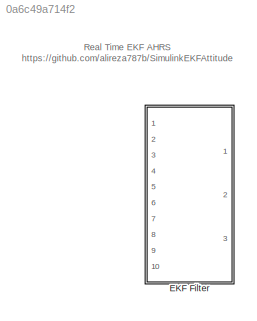
MODEL slx_0a6c49a714f2
KIND model
CONFIG AbsTol = auto
CONFIG EnableMultiTasking = off
CONFIG FixedStep = auto
CONFIG MaxStep = auto
CONFIG MinStep = auto
CONFIG RelTol = 1e-3
CONFIG SampleTimeConstraint = Unconstrained
CONFIG Solver = VariableStepAuto
CONFIG SolverName = VariableStepAuto
CONFIG StartTime = 0.0
CONFIG StopTime = 10.0
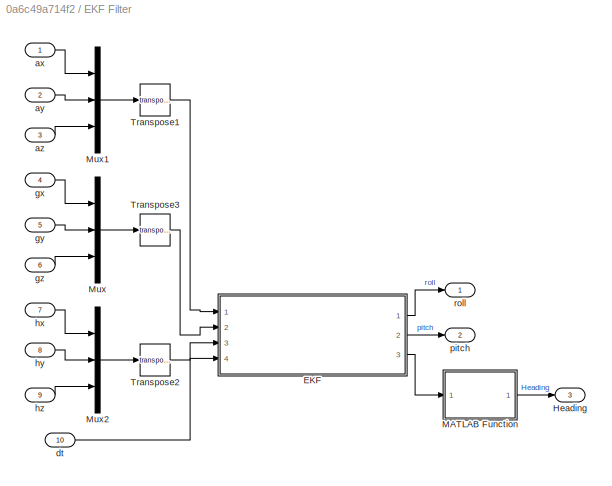
BLOCK [SubSystem] EKF Filter
  Ports = [10, 3]
  RequestExecContextInheritance = off
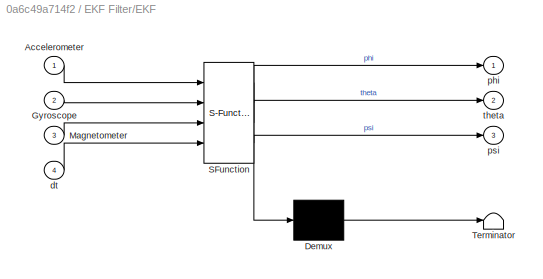
BLOCK [SubSystem] EKF Filter/EKF
  ErrorFcn = Stateflow.Translate.translate
  PermitHierarchicalResolution = ExplicitOnly
  Ports = [4, 3]
  RequestExecContextInheritance = off
  SFBlockType = MATLAB Function
  TreatAsAtomicUnit = on
BLOCK [Demux] EKF Filter/EKF/ Demux 
  Outputs = 1
  Ports = [1, 1]
BLOCK [S-Function] EKF Filter/EKF/ SFunction 
  EnableBusSupport = on
  FunctionName = sf_sfun
  PortCounts = [4 4]
  Ports = [4, 4]
  SFcnIsStateOwnerBlock = off
  SFunctionDeploymentMode = off
  Tag = Stateflow S-Function 1
BLOCK [Terminator] EKF Filter/EKF/ Terminator 
BLOCK [Inport] EKF Filter/EKF/Accelerometer
BLOCK [Inport] EKF Filter/EKF/Gyroscope
  Port = 2
BLOCK [Inport] EKF Filter/EKF/Magnetometer
  Port = 3
BLOCK [Inport] EKF Filter/EKF/dt
  Port = 4
BLOCK [Outport] EKF Filter/EKF/phi
BLOCK [Outport] EKF Filter/EKF/psi
  Port = 3
BLOCK [Outport] EKF Filter/EKF/theta
  Port = 2
BLOCK [Outport] EKF Filter/Heading
  Port = 3
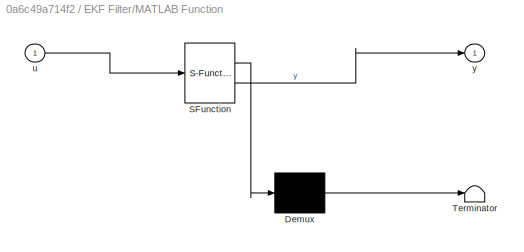
BLOCK [SubSystem] EKF Filter/MATLAB Function
  ErrorFcn = Stateflow.Translate.translate
  PermitHierarchicalResolution = ExplicitOnly
  Ports = [1, 1]
  RequestExecContextInheritance = off
  SFBlockType = MATLAB Function
  TreatAsAtomicUnit = on
BLOCK [Demux] EKF Filter/MATLAB Function/ Demux 
  Outputs = 1
  Ports = [1, 1]
BLOCK [S-Function] EKF Filter/MATLAB Function/ SFunction 
  EnableBusSupport = on
  FunctionName = sf_sfun
  PortCounts = [1 2]
  Ports = [1, 2]
  SFcnIsStateOwnerBlock = off
  SFunctionDeploymentMode = off
  Tag = Stateflow S-Function 2
BLOCK [Terminator] EKF Filter/MATLAB Function/ Terminator 
BLOCK [Inport] EKF Filter/MATLAB Function/u
BLOCK [Outport] EKF Filter/MATLAB Function/y
BLOCK [Mux] EKF Filter/Mux
  DisplayOption = bar
  Inputs = 3
  Ports = [3, 1]
BLOCK [Mux] EKF Filter/Mux1
  DisplayOption = bar
  Inputs = 3
  Ports = [3, 1]
BLOCK [Mux] EKF Filter/Mux2
  DisplayOption = bar
  Inputs = 3
  Ports = [3, 1]
BLOCK [Math] EKF Filter/Transpose1
  Operator = transpose
  Ports = [1, 1]
BLOCK [Math] EKF Filter/Transpose2
  Operator = transpose
  Ports = [1, 1]
BLOCK [Math] EKF Filter/Transpose3
  Operator = transpose
  Ports = [1, 1]
BLOCK [Inport] EKF Filter/ax
BLOCK [Inport] EKF Filter/ay
  Port = 2
BLOCK [Inport] EKF Filter/az
  Port = 3
BLOCK [Inport] EKF Filter/dt
  Port = 10
BLOCK [Inport] EKF Filter/gx
  Port = 4
BLOCK [Inport] EKF Filter/gy
  Port = 5
BLOCK [Inport] EKF Filter/gz
  Port = 6
BLOCK [Inport] EKF Filter/hx
  Port = 7
BLOCK [Inport] EKF Filter/hy
  Port = 8
BLOCK [Inport] EKF Filter/hz
  Port = 9
BLOCK [Outport] EKF Filter/pitch
  Port = 2
BLOCK [Outport] EKF Filter/roll
ANNOTATION (root): Real Time EKF AHRS https://github.com/alireza787b/SimulinkEKFAttitude
LINE EKF Filter/EKF:1 -> EKF Filter/roll:1
LINE EKF Filter/EKF:2 -> EKF Filter/pitch:1
LINE EKF Filter/EKF:3 -> EKF Filter/MATLAB Function:1
LINE EKF Filter/MATLAB Function:1 -> EKF Filter/Heading:1
LINE EKF Filter/Mux1:1 -> EKF Filter/Transpose1:1
LINE EKF Filter/Mux2:1 -> EKF Filter/Transpose2:1
LINE EKF Filter/Mux:1 -> EKF Filter/Transpose3:1
LINE EKF Filter/Transpose1:1 -> EKF Filter/EKF:1
LINE EKF Filter/Transpose2:1 -> EKF Filter/EKF:3
LINE EKF Filter/Transpose3:1 -> EKF Filter/EKF:2
LINE EKF Filter/ax:1 -> EKF Filter/Mux1:1
LINE EKF Filter/ay:1 -> EKF Filter/Mux1:2
LINE EKF Filter/az:1 -> EKF Filter/Mux1:3
LINE EKF Filter/dt:1 -> EKF Filter/EKF:4
LINE EKF Filter/gx:1 -> EKF Filter/Mux:1
LINE EKF Filter/gy:1 -> EKF Filter/Mux:2
LINE EKF Filter/gz:1 -> EKF Filter/Mux:3
LINE EKF Filter/hx:1 -> EKF Filter/Mux2:1
LINE EKF Filter/hy:1 -> EKF Filter/Mux2:2
LINE EKF Filter/hz:1 -> EKF Filter/Mux2:3
CHART EKF Filter/EKF states=1 transitions=1
  STATE_LABEL 'eML_blk_kernel()'
  STATE_LABEL 'SCRIPT:\nfunction [phi, theta, psi] = fcn(Accelerometer,Gyroscope,Magnetometer,dt)\npersistent AHRSEKF;\nif isempty(AHRSEKF)\n    AHRSEKF = EKFfilter();\nend\n    AHRSEKF.Update(dt, Gyroscope(1,:) , Accelerometer(1,:), Magnetometer(1,:));\n     phi = AHRSEKF.eulerAngles(1,1);   \n     theta = AHRSEKF.eulerAngles(2,1);   \n     psi = AHRSEKF.eulerAngles(3,1); \n\nend'
CHART EKF Filter/MATLAB Function states=1 transitions=1
  STATE_LABEL 'eML_blk_kernel()'
  STATE_LABEL 'SCRIPT:\nfunction y = angleCorrection(u)\nif u<0\n    y = u+6.2832;\n\nelse\ny = u;\nend \nend\n'
